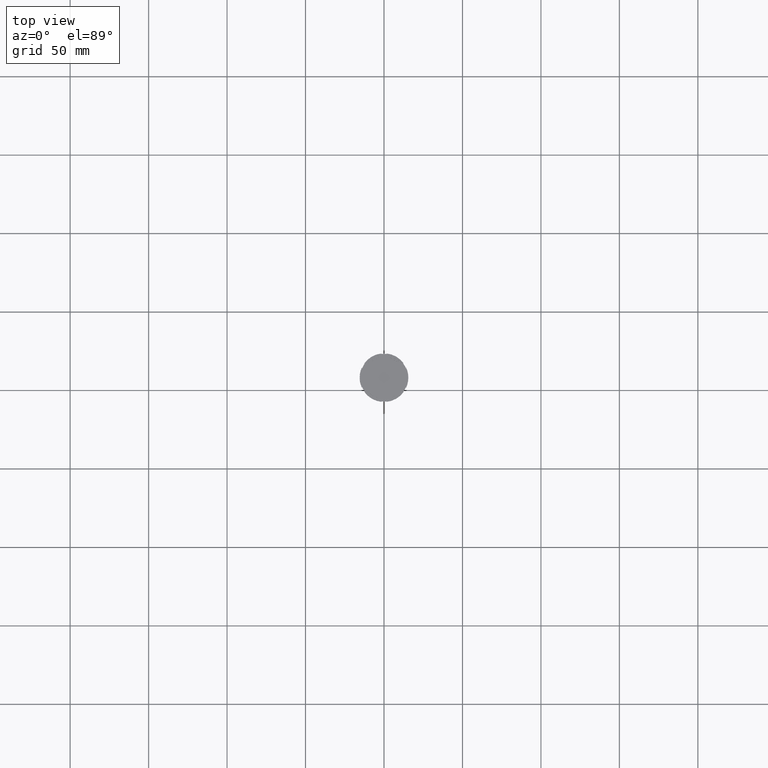
[diagram: clean part render]
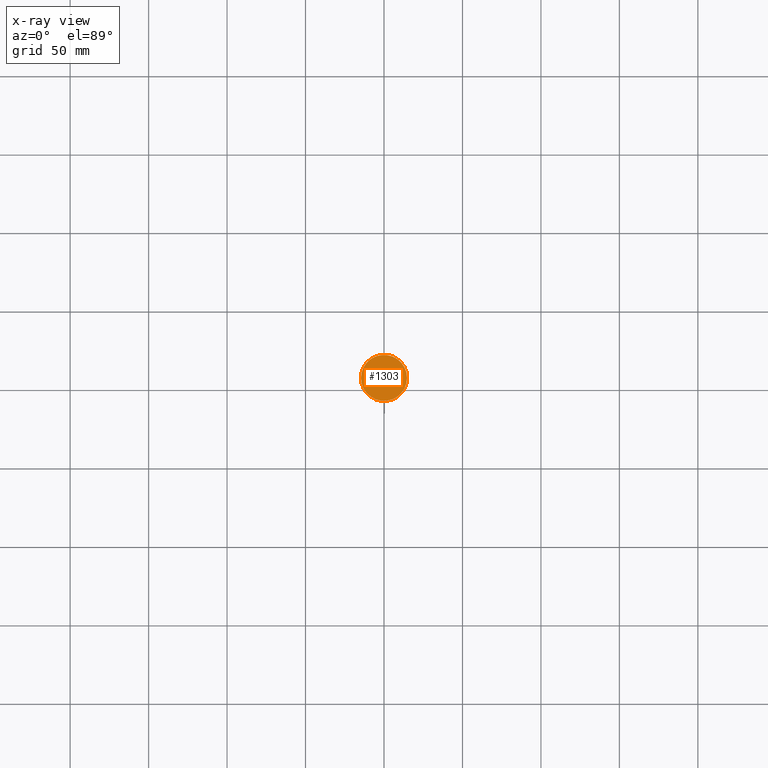
[diagram: x-ray — body ghosted, one internal face saturated and labeled with its STEP entity id]
A machine part, top view, then the same camera in x-ray: the body is ghosted and one INTERNAL B-rep face — a face not visible from any outside direction — is saturated and labeled: STEP entity #1303.
In plain terms, the highlighted planar face has unit normal (0, 0, -1).
Its self-contained STEP definition (entity closure, byte-faithful):
#132 = DIRECTION ( 'NONE',  ( -0.000000000000000000, -0.000000000000000000, 1.000000000000000000 ) ) ;
#143 = PLANE ( 'NONE',  #2628 ) ;
#355 = DIRECTION ( 'NONE',  ( -0.000000000000000000, -0.000000000000000000, 1.000000000000000000 ) ) ;
#405 = ORIENTED_EDGE ( 'NONE', *, *, #725, .T. ) ;
#586 = CARTESIAN_POINT ( 'NONE',  ( 0.000000000000000000, 0.000000000000000000, -12.00000000000000000 ) ) ;
#618 = DIRECTION ( 'NONE',  ( -1.000000000000000000, 0.000000000000000000, 0.000000000000000000 ) ) ;
#694 = ORIENTED_EDGE ( 'NONE', *, *, #2355, .T. ) ;
#725 = EDGE_CURVE ( 'NONE', #1033, #2780, #2289, .T. ) ;
#771 = AXIS2_PLACEMENT_3D ( 'NONE', #1415, #132, #2296 ) ;
#1003 = FACE_OUTER_BOUND ( 'NONE', #2738, .T. ) ;
#1033 = VERTEX_POINT ( 'NONE', #2008 ) ;
#1216 = CARTESIAN_POINT ( 'NONE',  ( 0.000000000000000000, 0.000000000000000000, -12.00000000000000000 ) ) ;
#1303 = ADVANCED_FACE ( 'NONE', ( #1003 ), #143, .F. ) ;
#1415 = CARTESIAN_POINT ( 'NONE',  ( 0.000000000000000000, 0.000000000000000000, -12.00000000000000000 ) ) ;
#2008 = CARTESIAN_POINT ( 'NONE',  ( 14.70000000000000107, 1.818600496733819553E-15, -12.00000000000000000 ) ) ;
#2034 = CIRCLE ( 'NONE', #771, 14.70000000000000107 ) ;
#2156 = AXIS2_PLACEMENT_3D ( 'NONE', #1216, #355, #618 ) ;
#2289 = CIRCLE ( 'NONE', #2156, 14.70000000000000107 ) ;
#2296 = DIRECTION ( 'NONE',  ( -1.000000000000000000, 0.000000000000000000, 0.000000000000000000 ) ) ;
#2333 = DIRECTION ( 'NONE',  ( 0.000000000000000000, 0.000000000000000000, -1.000000000000000000 ) ) ;
#2355 = EDGE_CURVE ( 'NONE', #2780, #1033, #2034, .T. ) ;
#2628 = AXIS2_PLACEMENT_3D ( 'NONE', #586, #2333, #2803 ) ;
#2738 = EDGE_LOOP ( 'NONE', ( #694, #405 ) ) ;
#2755 = CARTESIAN_POINT ( 'NONE',  ( -14.70000000000000107, 0.000000000000000000, -12.00000000000000000 ) ) ;
#2780 = VERTEX_POINT ( 'NONE', #2755 ) ;
#2803 = DIRECTION ( 'NONE',  ( -1.000000000000000000, 0.000000000000000000, -0.000000000000000000 ) ) ;